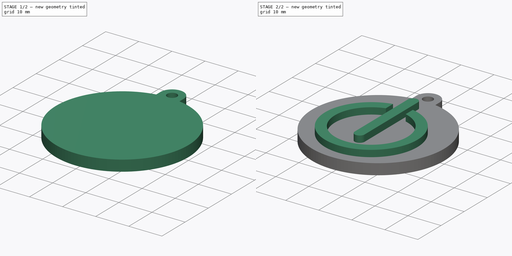
[diagram: build sequence overview — one tinted view per stage of 2, left to right]
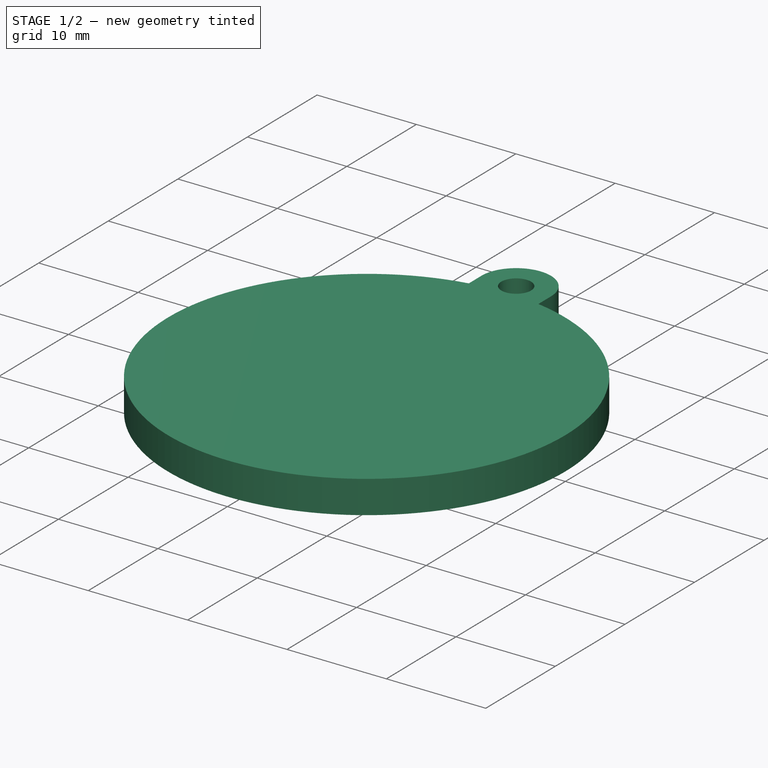
[diagram: stage 1 of 2 — iso view after this stage's code; geometry added in this stage tinted green]
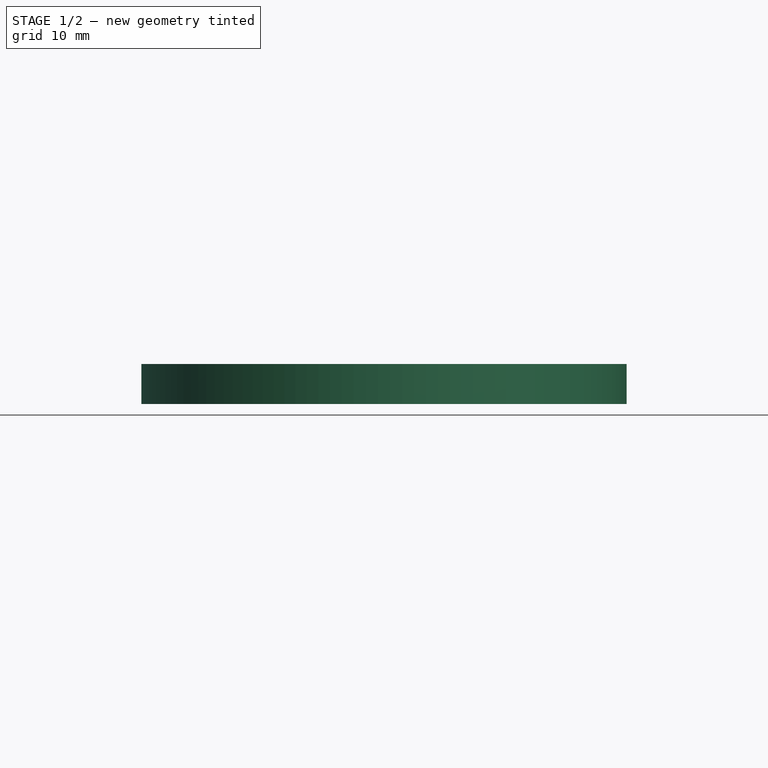
[diagram: stage 1 of 2 — front view after this stage's code; geometry added in this stage tinted green]
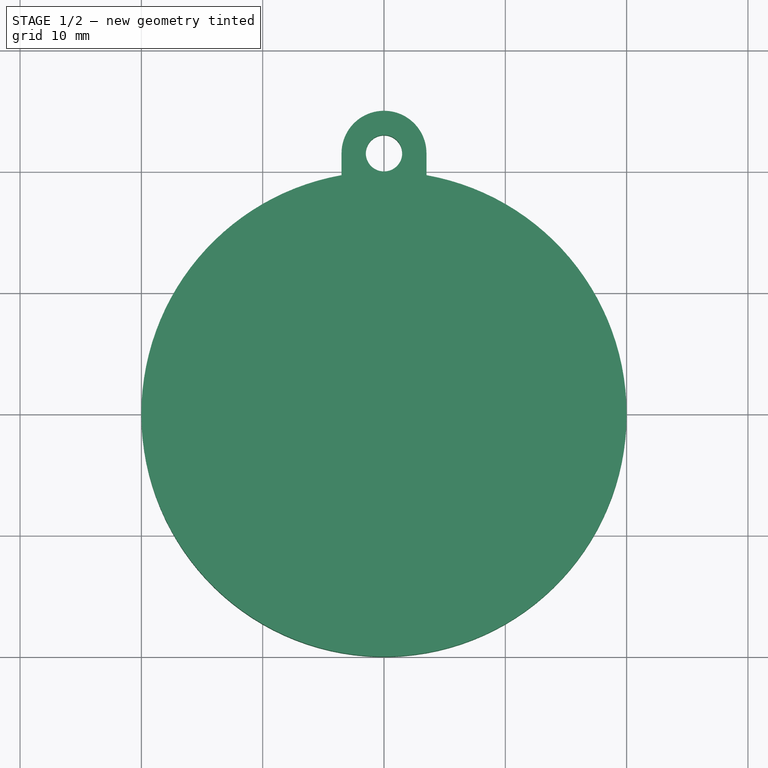
[diagram: stage 1 of 2 — top view after this stage's code; geometry added in this stage tinted green]
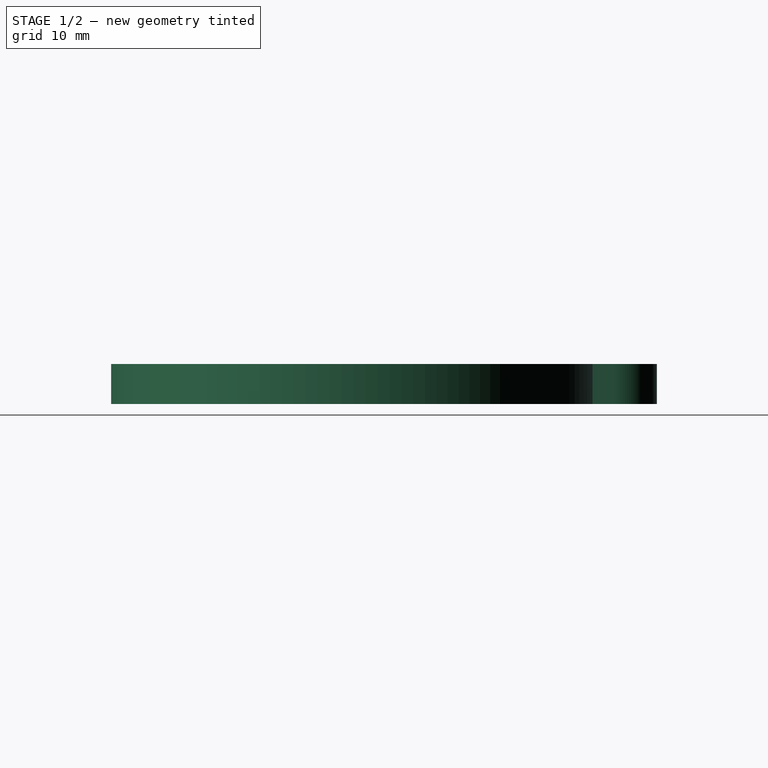
[diagram: stage 1 of 2 — right view after this stage's code; geometry added in this stage tinted green]
FCSTD DOCUMENT  (FreeCAD 0.14R$WCREV$)
Label: T5-ej3
License: CreativeCommons Attribution-ShareAlike
LicenseURL: http://creativecommons.org/licenses/by-sa/4.0/
objects: Part::Feature×2, App::DocumentObjectGroup×2, Sketcher::SketchObject×2, Part::Extrusion×1, PartDesign::Pad×1, PartDesign::Pocket×1
note: 9 computed .brp shape members not serialized (recipe doc carries the construction recipe); baked Part::Feature solids carry a one-line shape summary decoded from their .brp

FEATURE [Part::Feature] Sweep  label="key-ring-model-1"
  Placement = pos=(-1.2,30.2546,1.6391) rot=(0.333333,0.881918,0.333333;1.69612rad)
  shape: bbox 3.31 x 27.02 x 26.33 mm, 4 faces (baked)
FEATURE [Part::Feature] Cut  label="key-model-1"
  Placement = pos=(-5.46976,36.5266,0) rot=(0,0,1;0.517888rad)
  shape: bbox 49.82 x 36.6 x 2.3 mm, 44 faces (baked)
FEATURE [App::DocumentObjectGroup] Group  label="Assembly"
  Group = -> [Sweep,Cut]
FEATURE [Part::Extrusion] Extrude  label="casino-chip"
  Dir = (0,0,3.3)
  Solid = true
FEATURE [PartDesign::Pocket] Pocket
  Length = 5
  Sketch = -> Sketch001
  Type = 1
FEATURE [App::DocumentObjectGroup] Group001  label="Casino-chip-src"
  Group = -> [Extrude,Pad,Pocket]
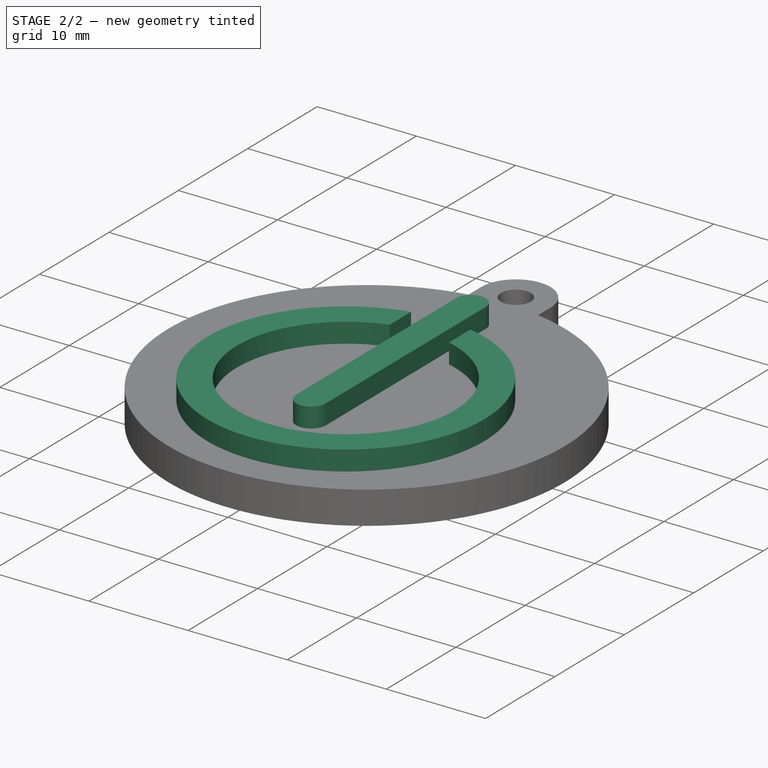
[diagram: stage 2 of 2 — iso view after this stage's code; geometry added in this stage tinted green]
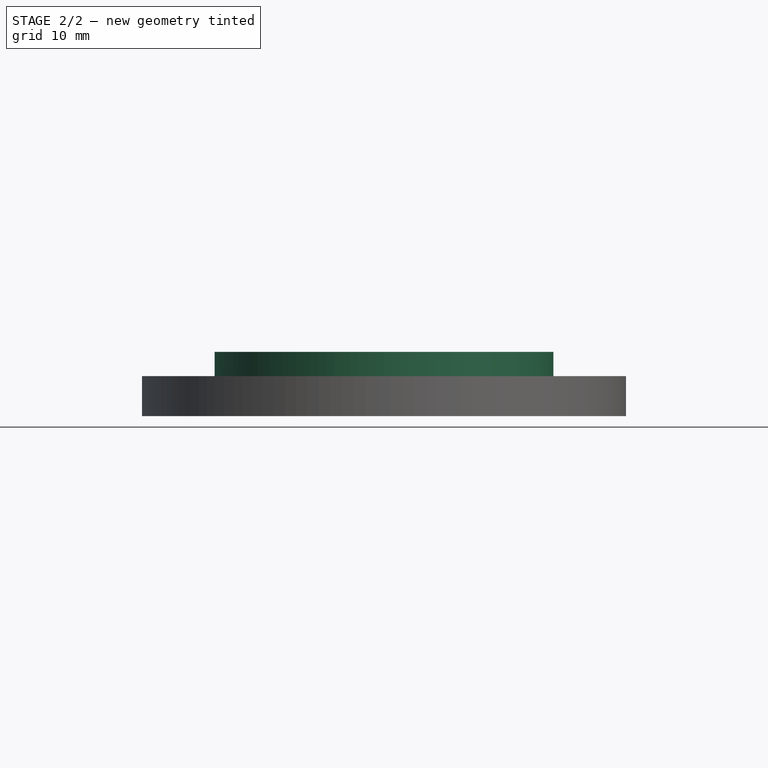
[diagram: stage 2 of 2 — front view after this stage's code; geometry added in this stage tinted green]
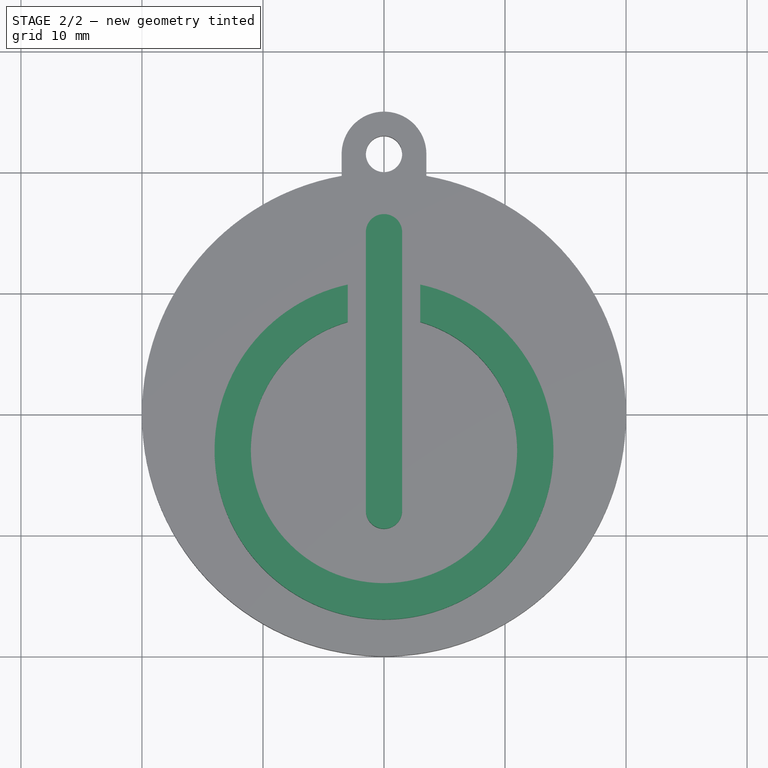
[diagram: stage 2 of 2 — top view after this stage's code; geometry added in this stage tinted green]
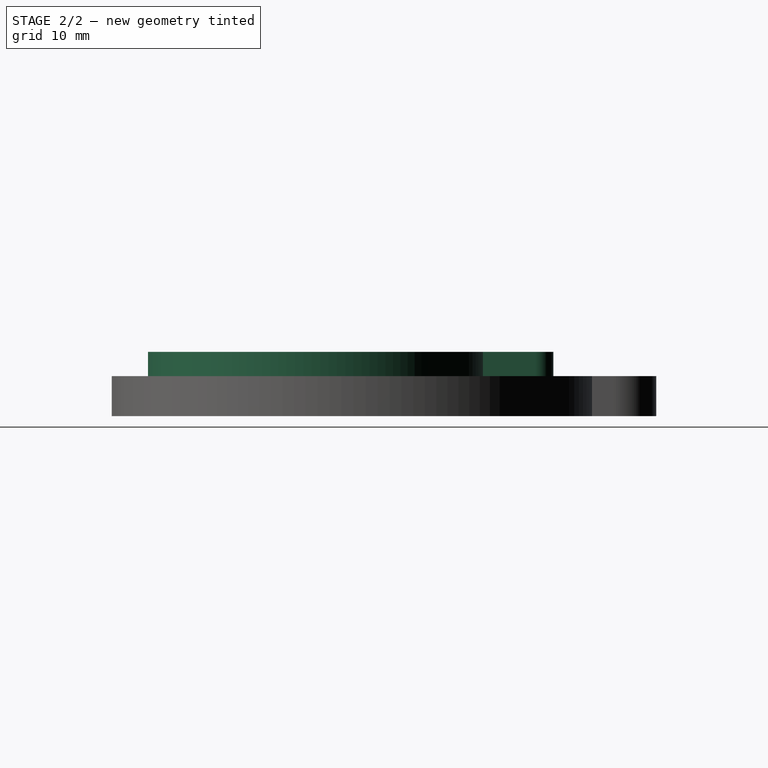
[diagram: stage 2 of 2 — right view after this stage's code; geometry added in this stage tinted green]
FEATURE [Sketcher::SketchObject] Sketch001
  Placement = pos=(0,0,3.3) rot=(0,0,1;0rad)
  Support = -> Extrude [Face6]
  sketch-geometry (1):
    g0: Circle CenterX=0 CenterY=21.5 CenterZ=0 NormalX=0 NormalY=0 NormalZ=1 Radius=1.5
  constraints (3):
    c: DistanceY(g-1,g0) = 21.5
    c: PointOnObject(g0,g-2)
    c: Radius(g0) = 1.5
FEATURE [Sketcher::SketchObject] Sketch
  Placement = pos=(0,0,3.3) rot=(0,0,1;0rad)
  sketch-geometry (10):
    g0: ArcOfCircle CenterX=0 CenterY=-3 CenterZ=0 NormalX=0 NormalY=0 NormalZ=1 Radius=14 StartAngle=1.78676 EndAngle=7.63802
    g1: ArcOfCircle CenterX=0 CenterY=-3 CenterZ=0 NormalX=0 NormalY=0 NormalZ=1 Radius=11 StartAngle=1.84702 EndAngle=7.57776
    g2: LineSegment StartX=-3 StartY=7.58301 StartZ=0 EndX=-3 EndY=10.6748 EndZ=0
    g3: LineSegment StartX=3 StartY=10.6748 StartZ=0 EndX=3 EndY=7.58301 EndZ=0
    g4: LineSegment [constr] StartX=0 StartY=-17 StartZ=0 EndX=0 EndY=-14 EndZ=0
    g5: ArcOfCircle CenterX=0 CenterY=15 CenterZ=0 NormalX=0 NormalY=0 NormalZ=1 Radius=1.5 StartAngle=6.28318 EndAngle=9.42478
    g6: ArcOfCircle CenterX=0 CenterY=-8 CenterZ=0 NormalX=0 NormalY=0 NormalZ=1 Radius=1.5 StartAngle=3.14159 EndAngle=6.28319
    g7: LineSegment StartX=-1.5 StartY=15 StartZ=0 EndX=-1.5 EndY=-7.99999 EndZ=0
    g8: LineSegment StartX=1.5 StartY=15 StartZ=0 EndX=1.5 EndY=-7.99999 EndZ=0
    g9: LineSegment [constr] StartX=1.5 StartY=-7.99999 StartZ=0 EndX=-1.5 EndY=-7.99999 EndZ=0
  constraints (33):
    c: Radius(g0) = 14
    c: PointOnObject(g0,g-2)
    c: Coincident(g1,g0)
    c: Distance(g-1,g0) = 3
    c: Vertical(g2)
    c: Vertical(g3)
    c: Coincident(g0,g2)
    c: Coincident(g0,g3)
    c: Coincident(g1,g2)
    c: Coincident(g1,g3)
    c: Symmetric(g0,g0,g-2)
    c: Distance(g0,g0) = 6
    c: PointOnObject(g4,g0)
    c: PointOnObject(g4,g1)
    c: Vertical(g4)
    c: PointOnObject(g4,g-2)
    c: Distance(g4) = 3
    c: Tangent(g5,g7)
    c: Tangent(g5,g8)
    c: Tangent(g6,g7)
    c: Tangent(g6,g8)
    c: Coincident(g5,g8)
    c: Coincident(g5,g7)
    c: Coincident(g7,g6)
    c: Coincident(g8,g6)
    c: Vertical(g7)
    c: Equal(g5,g6)
    c: PointOnObject(g5,g-2)
    c: Coincident(g9,g6)
    c: Coincident(g9,g6)
    c: Equal(g9,g4)
    c: Distance(g0,g6) = 5
    c: Distance(g5,g6) = 23
FEATURE [PartDesign::Pad] Pad
  Length = 2
  Length2 = 100
  Placement = pos=(0,0,3.3) rot=(0,0,1;0rad)
  Sketch = -> Sketch
  Type = 0
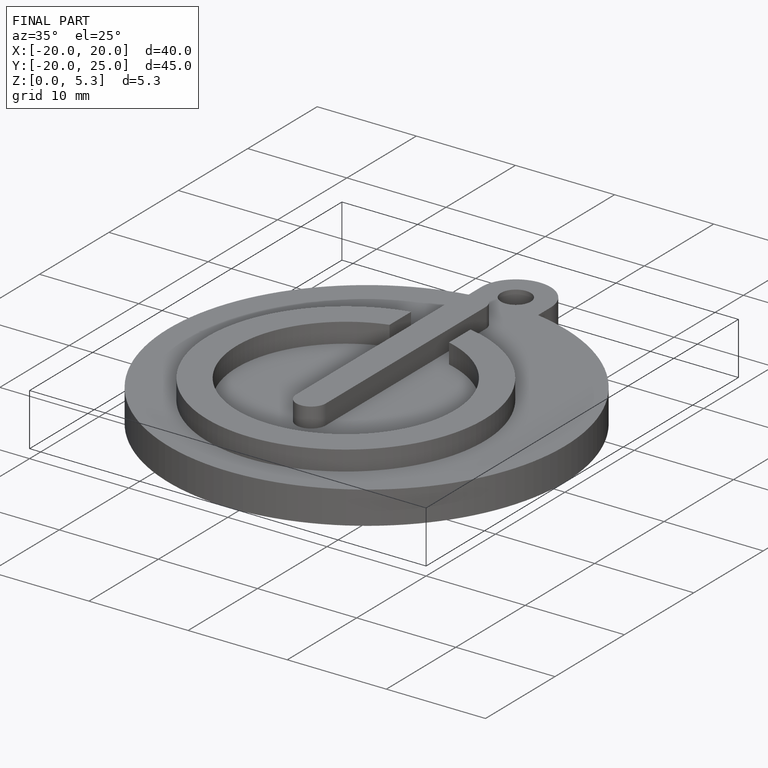
[diagram: finished part — iso view with bounding-box wireframe]
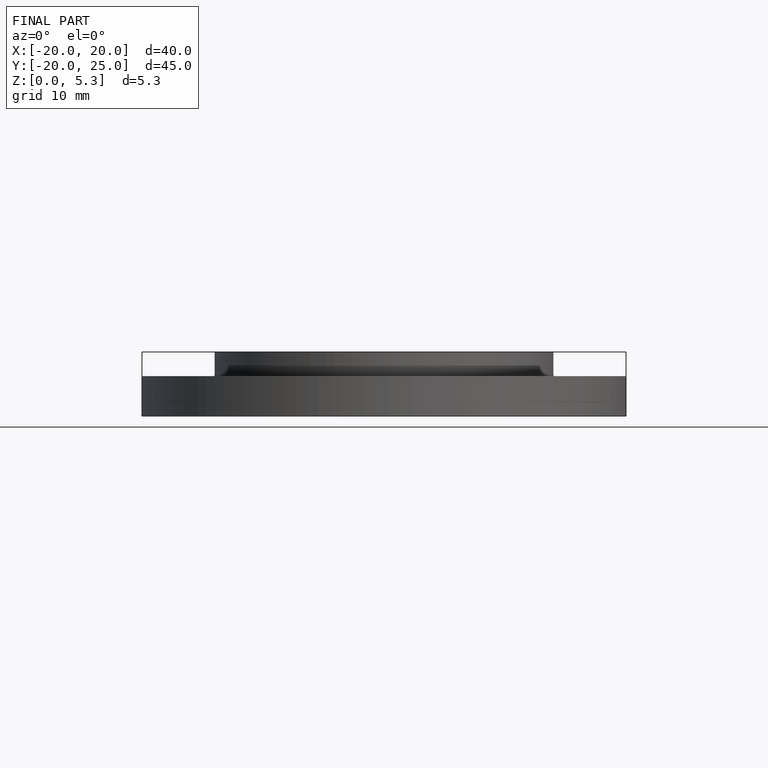
[diagram: finished part — front view with bounding-box wireframe]
